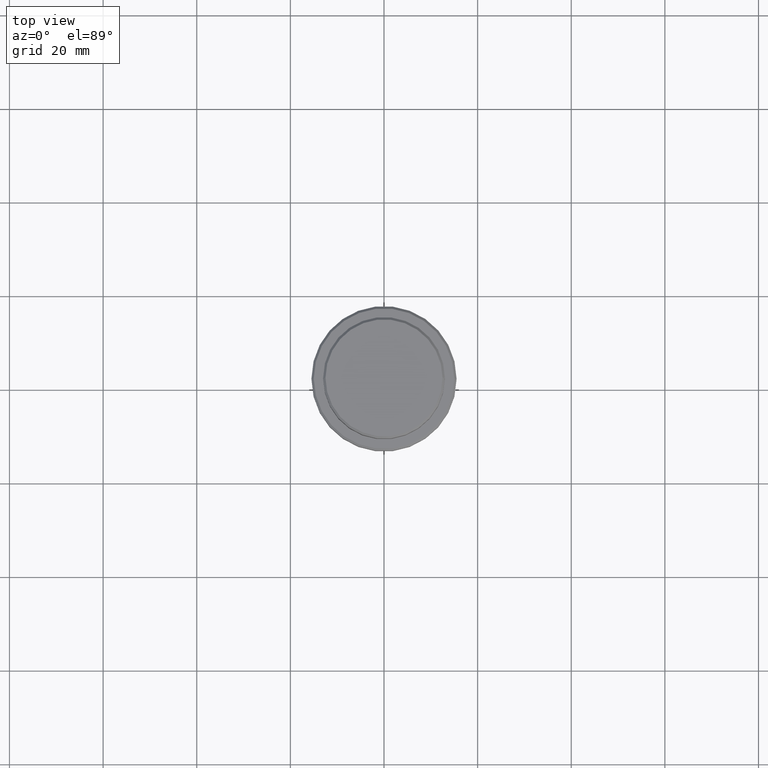
[diagram: clean part render]
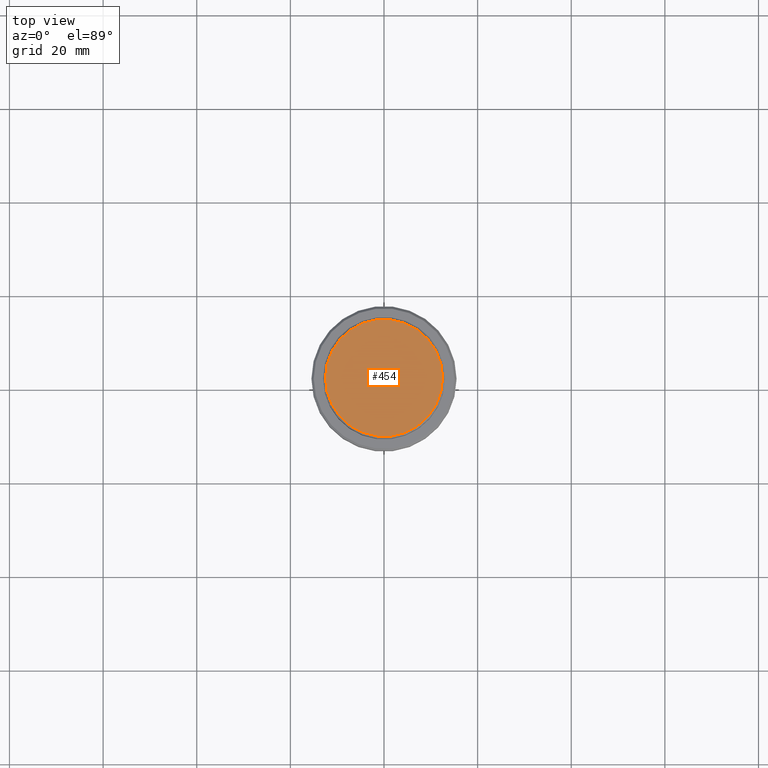
[diagram: same view with one face highlighted and labeled with its STEP entity id]
A machine part, top view. The second image highlights one B-rep face of the part: STEP entity #454.
In plain terms, the highlighted planar face has unit normal (0, -0, 1).
Its self-contained STEP definition (entity closure, byte-faithful):
#39 = AXIS2_PLACEMENT_3D ( 'NONE', #1002, #332, #1190 ) ;
#43 = FACE_OUTER_BOUND ( 'NONE', #249, .T. ) ;
#56 = CARTESIAN_POINT ( 'NONE',  ( 0.000000000000000000, 0.000000000000000000, 0.000000000000000000 ) ) ;
#100 = DIRECTION ( 'NONE',  ( -0.000000000000000000, -0.000000000000000000, 1.000000000000000000 ) ) ;
#161 = CIRCLE ( 'NONE', #39, 12.50000000000002665 ) ;
#249 = EDGE_LOOP ( 'NONE', ( #1026, #569 ) ) ;
#274 = CIRCLE ( 'NONE', #374, 12.50000000000002665 ) ;
#332 = DIRECTION ( 'NONE',  ( -0.000000000000000000, -0.000000000000000000, 1.000000000000000000 ) ) ;
#374 = AXIS2_PLACEMENT_3D ( 'NONE', #911, #100, #475 ) ;
#405 = CARTESIAN_POINT ( 'NONE',  ( 12.50000000000002665, 1.561424668912876886E-15, 0.000000000000000000 ) ) ;
#415 = AXIS2_PLACEMENT_3D ( 'NONE', #56, #492, #1145 ) ;
#454 = ADVANCED_FACE ( 'NONE', ( #43 ), #481, .T. ) ;
#475 = DIRECTION ( 'NONE',  ( 1.000000000000000000, 0.000000000000000000, 0.000000000000000000 ) ) ;
#481 = PLANE ( 'NONE',  #415 ) ;
#492 = DIRECTION ( 'NONE',  ( 0.000000000000000000, -0.000000000000000000, 1.000000000000000000 ) ) ;
#569 = ORIENTED_EDGE ( 'NONE', *, *, #712, .T. ) ;
#712 = EDGE_CURVE ( 'NONE', #1004, #1109, #274, .T. ) ;
#911 = CARTESIAN_POINT ( 'NONE',  ( 0.000000000000000000, 0.000000000000000000, 0.000000000000000000 ) ) ;
#1002 = CARTESIAN_POINT ( 'NONE',  ( 0.000000000000000000, 0.000000000000000000, 0.000000000000000000 ) ) ;
#1004 = VERTEX_POINT ( 'NONE', #405 ) ;
#1026 = ORIENTED_EDGE ( 'NONE', *, *, #1050, .T. ) ;
#1050 = EDGE_CURVE ( 'NONE', #1109, #1004, #161, .T. ) ;
#1104 = CARTESIAN_POINT ( 'NONE',  ( -12.50000000000002665, 0.000000000000000000, 0.000000000000000000 ) ) ;
#1109 = VERTEX_POINT ( 'NONE', #1104 ) ;
#1145 = DIRECTION ( 'NONE',  ( 1.000000000000000000, 0.000000000000000000, 0.000000000000000000 ) ) ;
#1190 = DIRECTION ( 'NONE',  ( 1.000000000000000000, 0.000000000000000000, 0.000000000000000000 ) ) ;